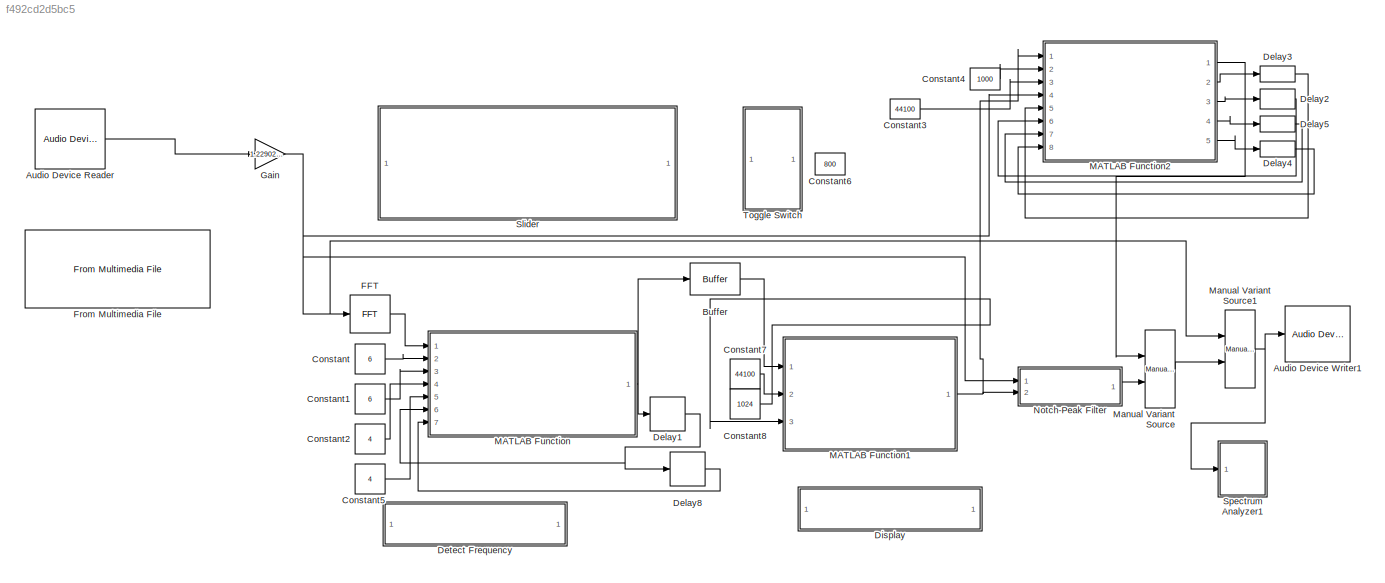
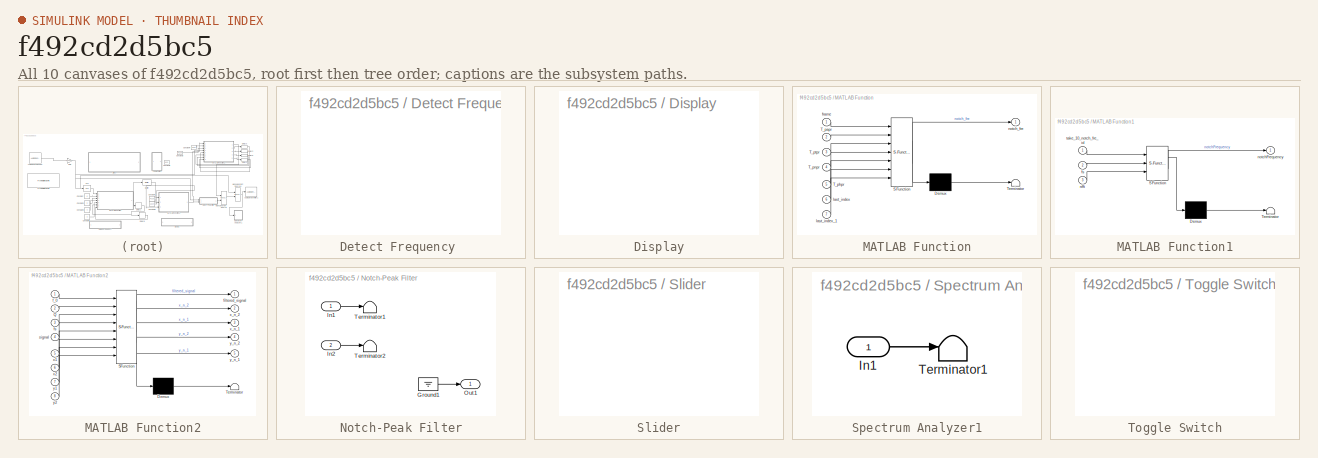
[diagram: thumbnail index - all 10 canvases of the model, root first then tree order]
MODEL slx_f492cd2d5bc5
KIND model
CONFIG AbsTol = auto
CONFIG EnableMultiTasking = off
CONFIG FixedStep = auto
CONFIG MaxStep = auto
CONFIG MinStep = auto
CONFIG RelTol = 1e-3
CONFIG SampleTimeConstraint = Unconstrained
CONFIG Solver = FixedStepDiscrete
CONFIG SolverName = FixedStepDiscrete
CONFIG StartTime = 0.0
CONFIG StopTime = inf
BLOCK [Reference] Audio Device Reader  REF=audiosources/Audio Device
Reader
  Ports = [0, 1]
  SourceBlock = audiosources/Audio Device\nReader
  SourceType = Audio Device Reader
BLOCK [Reference] Audio Device Writer1  REF=dspsnks4/Audio Device
Writer
  Ports = [1]
  SourceBlock = dspsnks4/Audio Device\nWriter
  SourceType = Audio Device Writer
BLOCK [Buffer] Buffer
  N = 5
  OutputFrames = off
BLOCK [Constant] Constant
  Value = 6
BLOCK [Constant] Constant1
  Value = 6
BLOCK [Constant] Constant2
  Value = 4
BLOCK [Constant] Constant3
  Value = 44100
BLOCK [Constant] Constant4
  Value = 1000
BLOCK [Constant] Constant5
  Value = 4
BLOCK [Constant] Constant6
  Value = 800
BLOCK [Constant] Constant7
  Value = 44100
BLOCK [Constant] Constant8
  Value = 1024
BLOCK [Delay] Delay1
  DelayLength = 1
  InitialCondition = 0
  InputPortMap = u0
  Ports = [1, 1]
BLOCK [Delay] Delay2
  DelayLength = 1
  InitialCondition = 0
  InputPortMap = u0
  Ports = [1, 1]
BLOCK [Delay] Delay3
  DelayLength = 1
  InitialCondition = 0
  InputPortMap = u0
  Ports = [1, 1]
BLOCK [Delay] Delay4
  DelayLength = 1
  InitialCondition = 0
  InputPortMap = u0
  Ports = [1, 1]
BLOCK [Delay] Delay5
  DelayLength = 1
  InitialCondition = 0
  InputPortMap = u0
  Ports = [1, 1]
BLOCK [Delay] Delay8
  DelayLength = 1
  InitialCondition = 0
  InputPortMap = u0
  Ports = [1, 1]
BLOCK [SubSystem] Detect Frequency 
  Description = Replaced Block
  Ports = []
BLOCK [SubSystem] Display
  Description = Replaced Block
  Ports = []
BLOCK [Reference] FFT  REF=dspxfrm3/FFT
  Ports = [1, 1]
  SourceBlock = dspxfrm3/FFT
  SourceType = FFT
BLOCK [Reference] From Multimedia File  REF=dspvision/From Multimedia File
  Ports = [0, 1]
  SourceBlock = dspvision/From Multimedia File
  SourceType = From Multimedia File
BLOCK [Gain] Gain
  Gain = 1.229021847070507
  Multiplication = Matrix(u*K)
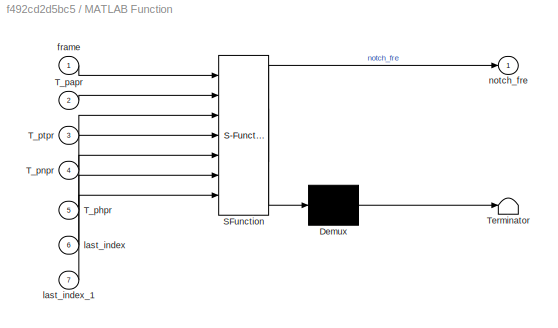
BLOCK [SubSystem] MATLAB Function
  ErrorFcn = Stateflow.Translate.translate
  PermitHierarchicalResolution = ExplicitOnly
  Ports = [7, 1]
  SFBlockType = MATLAB Function
  TreatAsAtomicUnit = on
BLOCK [Demux] MATLAB Function/ Demux 
  Outputs = 1
  Ports = [1, 1]
BLOCK [S-Function] MATLAB Function/ SFunction 
  EnableBusSupport = on
  FunctionName = sf_sfun
  PortCounts = [7 2]
  Ports = [7, 2]
  SFcnIsStateOwnerBlock = off
  SFunctionDeploymentMode = off
  Tag = Stateflow S-Function NHS_simulink_1024nfft_buffer_2017a 2
BLOCK [Terminator] MATLAB Function/ Terminator 
BLOCK [Inport] MATLAB Function/T_papr
  Port = 2
BLOCK [Inport] MATLAB Function/T_phpr
  Port = 5
BLOCK [Inport] MATLAB Function/T_pnpr
  Port = 4
BLOCK [Inport] MATLAB Function/T_ptpr
  Port = 3
BLOCK [Inport] MATLAB Function/frame
BLOCK [Inport] MATLAB Function/last_index
  Port = 6
BLOCK [Inport] MATLAB Function/last_index_1
  Port = 7
BLOCK [Outport] MATLAB Function/notch_fre
BLOCK [SubSystem] MATLAB Function1
  ErrorFcn = Stateflow.Translate.translate
  PermitHierarchicalResolution = ExplicitOnly
  Ports = [3, 1]
  SFBlockType = MATLAB Function
  TreatAsAtomicUnit = on
BLOCK [Demux] MATLAB Function1/ Demux 
  Outputs = 1
  Ports = [1, 1]
BLOCK [S-Function] MATLAB Function1/ SFunction 
  EnableBusSupport = on
  FunctionName = sf_sfun
  PortCounts = [3 2]
  Ports = [3, 2]
  SFcnIsStateOwnerBlock = off
  SFunctionDeploymentMode = off
  Tag = Stateflow S-Function NHS_simulink_1024nfft_buffer_2017a 1
BLOCK [Terminator] MATLAB Function1/ Terminator 
BLOCK [Inport] MATLAB Function1/fs
  Port = 2
BLOCK [Inport] MATLAB Function1/nfft
  Port = 3
BLOCK [Outport] MATLAB Function1/notchFrequency
BLOCK [Inport] MATLAB Function1/take_10_notch_fre_id
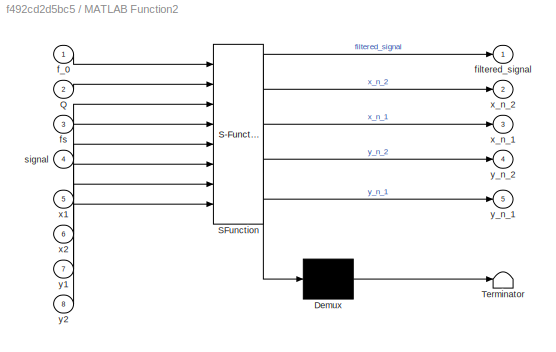
BLOCK [SubSystem] MATLAB Function2
  ErrorFcn = Stateflow.Translate.translate
  PermitHierarchicalResolution = ExplicitOnly
  Ports = [8, 5]
  SFBlockType = MATLAB Function
  TreatAsAtomicUnit = on
BLOCK [Demux] MATLAB Function2/ Demux 
  Outputs = 1
  Ports = [1, 1]
BLOCK [S-Function] MATLAB Function2/ SFunction 
  EnableBusSupport = on
  FunctionName = sf_sfun
  PortCounts = [8 6]
  Ports = [8, 6]
  SFcnIsStateOwnerBlock = off
  SFunctionDeploymentMode = off
  Tag = Stateflow S-Function NHS_simulink_1024nfft_buffer_2017a 3
BLOCK [Terminator] MATLAB Function2/ Terminator 
BLOCK [Inport] MATLAB Function2/Q
  Port = 2
BLOCK [Inport] MATLAB Function2/f_0
BLOCK [Outport] MATLAB Function2/filtered_signal
BLOCK [Inport] MATLAB Function2/fs
  Port = 3
BLOCK [Inport] MATLAB Function2/signal
  Port = 4
BLOCK [Inport] MATLAB Function2/x1
  Port = 5
BLOCK [Inport] MATLAB Function2/x2
  Port = 6
BLOCK [Outport] MATLAB Function2/x_n_1
  Port = 3
BLOCK [Outport] MATLAB Function2/x_n_2
  Port = 2
BLOCK [Inport] MATLAB Function2/y1
  Port = 7
BLOCK [Inport] MATLAB Function2/y2
  Port = 8
BLOCK [Outport] MATLAB Function2/y_n_1
  Port = 5
BLOCK [Outport] MATLAB Function2/y_n_2
  Port = 4
BLOCK [Reference] Manual Variant Source  REF=simulink/Signal
Routing/Manual
Variant Source
  Ports = [2, 1]
  SourceBlock = simulink/Signal\nRouting/Manual\nVariant Source
  SourceType = ManualVariantSource
BLOCK [Reference] Manual Variant Source1  REF=simulink/Signal
Routing/Manual
Variant Source
  Ports = [2, 1]
  SourceBlock = simulink/Signal\nRouting/Manual\nVariant Source
  SourceType = ManualVariantSource
BLOCK [SubSystem] Notch-Peak Filter
  Description = Replaced Block
  InitFcn = error('This block was designed with a newer version of Simulink. Unfortunately, your Simulink version does not support these features.')
  Ports = [2, 1]
BLOCK [Ground] Notch-Peak Filter/Ground1
BLOCK [Inport] Notch-Peak Filter/In1
BLOCK [Inport] Notch-Peak Filter/In2
  Port = 2
BLOCK [Outport] Notch-Peak Filter/Out1
BLOCK [Terminator] Notch-Peak Filter/Terminator1
BLOCK [Terminator] Notch-Peak Filter/Terminator2
BLOCK [SubSystem] Slider
  DialogController = hmiCreateDDGDialog
  IsWebBlock = on
  Ports = []
BLOCK [SubSystem] Spectrum Analyzer1
  Description = Replaced Block
  Ports = [1]
BLOCK [Inport] Spectrum Analyzer1/In1
BLOCK [Terminator] Spectrum Analyzer1/Terminator1
BLOCK [SubSystem] Toggle Switch
  DialogController = hmiCreateDDGDialog
  IsWebBlock = on
  Ports = []
LINE Audio Device Reader:1 -> Gain:1
LINE Buffer:1 -> MATLAB Function1:1
LINE Constant1:1 -> MATLAB Function:3
LINE Constant2:1 -> MATLAB Function:4
LINE Constant3:1 -> MATLAB Function2:3
LINE Constant4:1 -> MATLAB Function2:2
LINE Constant5:1 -> MATLAB Function:5
LINE Constant7:1 -> MATLAB Function1:2
LINE Constant8:1 -> MATLAB Function1:3
LINE Constant:1 -> MATLAB Function:2
NET Delay1:1 -> Delay8:1, MATLAB Function:6
LINE Delay2:1 -> MATLAB Function2:6
LINE Delay3:1 -> MATLAB Function2:5
LINE Delay4:1 -> MATLAB Function2:8
LINE Delay5:1 -> MATLAB Function2:7
LINE Delay8:1 -> MATLAB Function:7
LINE FFT:1 -> MATLAB Function:1
NET Gain:1 -> FFT:1, MATLAB Function2:4, Manual Variant Source1:1, Notch-Peak Filter:1
NET MATLAB Function1:1 -> MATLAB Function2:1, Notch-Peak Filter:2
LINE MATLAB Function2:1 -> Manual Variant Source:1
LINE MATLAB Function2:2 -> Delay3:1
LINE MATLAB Function2:3 -> Delay2:1
LINE MATLAB Function2:4 -> Delay5:1
LINE MATLAB Function2:5 -> Delay4:1
NET MATLAB Function:1 -> Buffer:1, Delay1:1
NET Manual Variant Source1:1 -> Audio Device Writer1:1, Spectrum Analyzer1:1
LINE Manual Variant Source:1 -> Manual Variant Source1:2
LINE Notch-Peak Filter/Ground1:1 -> Notch-Peak Filter/Out1:1
LINE Notch-Peak Filter/In1:1 -> Notch-Peak Filter/Terminator1:1
LINE Notch-Peak Filter/In2:1 -> Notch-Peak Filter/Terminator2:1
LINE Notch-Peak Filter:1 -> Manual Variant Source:2
LINE Spectrum Analyzer1/In1:1 -> Spectrum Analyzer1/Terminator1:1
note: NET lines group one-source signal fan-out (src -> all destinations, sorted); 1:1 wires keep LINE
CHART MATLAB Function1 states=1 transitions=1
  STATE_LABEL 'eML_blk_kernel()'
  STATE_LABEL 'SCRIPT:\nfunction notchFrequency = update_notch_par(take_10_notch_fre_id, fs, nfft)\n    current_notch_fre_id = 2;\n    if any(take_10_notch_fre_id == 2)\n        notchFrequency = 0;\n    else\n        % 计算A中每个元素出现的次数\n        [counts, bins] = histcounts(take_10_notch_fre_id);\n\n        % 找到出现次数最大的元素的索引\n        [max_count, max_idx] = max(counts);\n\n        % 判断最大出现次数是否大于等于3，如果是，则将b赋值为对应的元素\n        if max_c...<+494ch>'
CHART MATLAB Function states=1 transitions=1
  STATE_LABEL 'eML_blk_kernel()'
  STATE_LABEL 'SCRIPT:\nfunction notch_fre = find_howling_frequency(frame, T_papr, T_ptpr, T_pnpr,T_phpr,last_index, last_index_1)\n    \n%%%%%Args:\n        %frame: Spectrum of one frame.\n        %T_...: Power threshold value in dB for different methods.\n    %Returns:\n        %Notch Frequency for current frame\n    power = abs(frame).^2;\n    papr = zeros(length(power),1);\n    avarage = mean(power);\n    ret_papr = []...<+1424ch>'
CHART MATLAB Function2 states=1 transitions=1
  STATE_LABEL 'eML_blk_kernel()'
  STATE_LABEL 'SCRIPT:\nfunction [filtered_signal,x_n_2, x_n_1, y_n_2, y_n_1] = add_iir_notch_filter_frame(f_0, Q, fs,signal, x1 ,x2, y1, y2)\n    % ARG: f_0 center Frequency, Q: quality factor, fs: sampling frequency,\n    % original signal\n    % RETURN: filtered signal \n    if f_0 == 0\n        x_n_1 = signal(end);%x(n-1)\n        x_n_2 = signal(end-1); %x(n-2)\n        y = [y1; y2 ;signal];\n        filtered_signal=...<+1631ch>'
